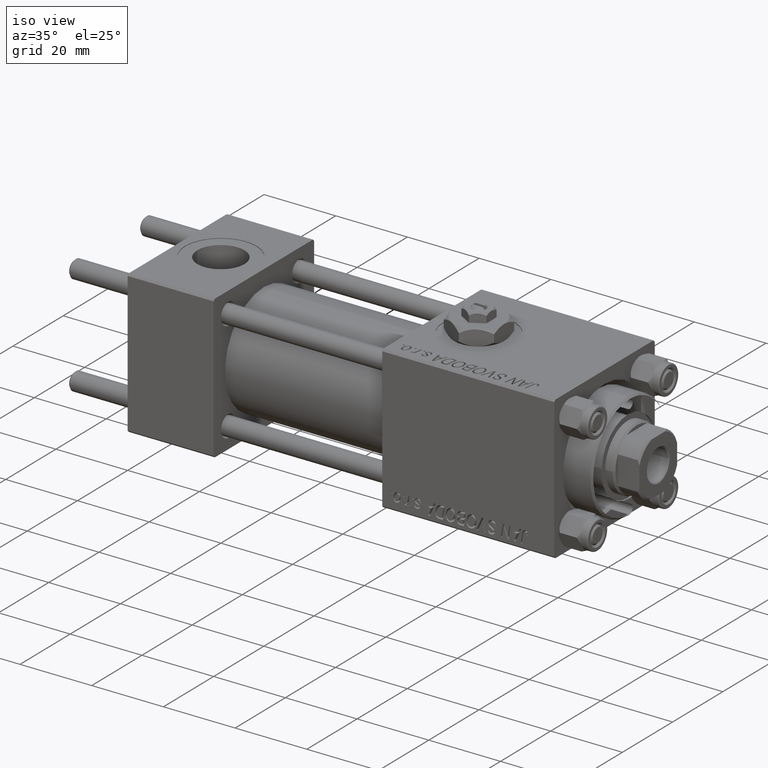
[diagram: clean part render]
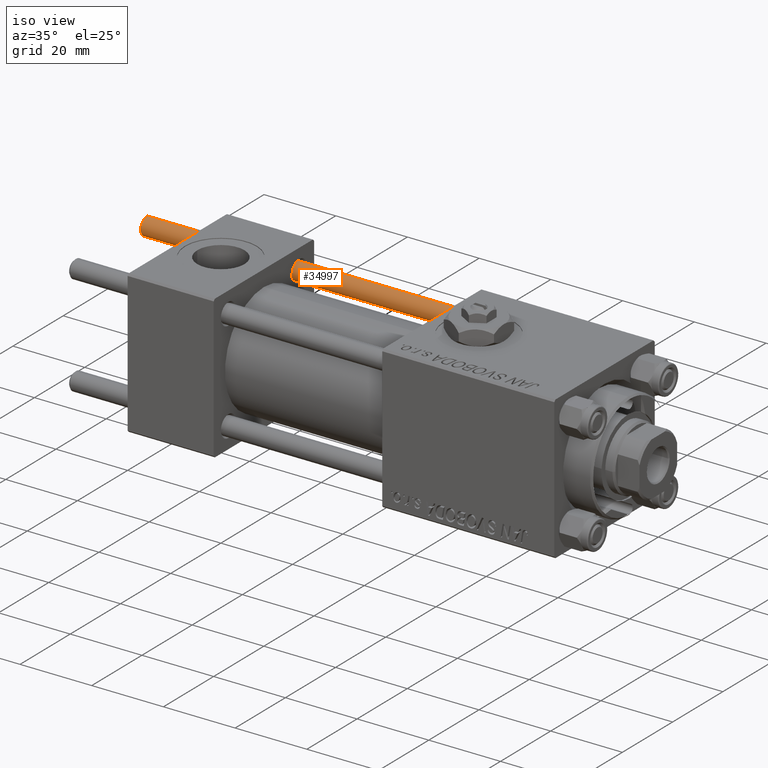
[diagram: same view with one face highlighted and labeled with its STEP entity id]
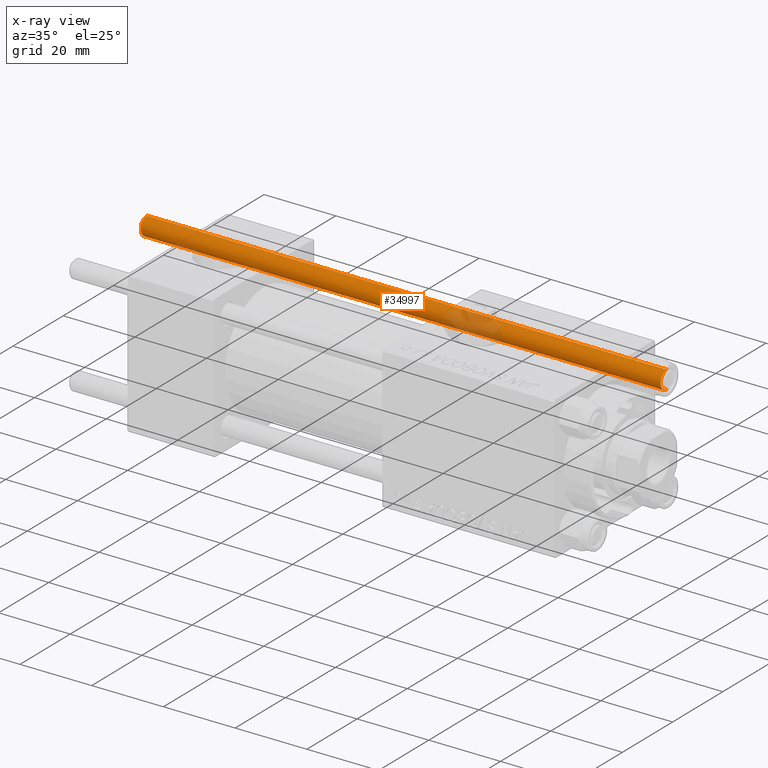
[diagram: x-ray of the same camera — body ghosted, the highlighted face saturated]
A machine part, iso view. The second image highlights one B-rep face of the part: STEP entity #34997.
The next image is the same camera in x-ray: the body ghosted, the highlighted face saturated — about 10% of this face is hidden behind the body in this view.
In plain terms, the highlighted cylindrical surface (edge-blend (fillet) strip) has radius 2.5 mm, axis along (-1, -0, -0).
Its self-contained STEP definition (entity closure, byte-faithful):
#1056 = CARTESIAN_POINT ( 'NONE',  ( 0.000000000000000000, 0.000000000000000000, 0.5000000000000559552 ) ) ;
#2392 = VERTEX_POINT ( 'NONE', #38677 ) ;
#2505 = DIRECTION ( 'NONE',  ( -1.000000000000000000, 0.000000000000000000, 0.000000000000000000 ) ) ;
#5124 = VECTOR ( 'NONE', #46745, 1000.000000000000000 ) ;
#6091 = LINE ( 'NONE', #22118, #35987 ) ;
#7775 = EDGE_LOOP ( 'NONE', ( #17033, #18229, #35977, #50724 ) ) ;
#9344 = CYLINDRICAL_SURFACE ( 'NONE', #32173, 2.500000000000000000 ) ;
#12777 = CARTESIAN_POINT ( 'NONE',  ( -2.500000000000000000, 0.000000000000000000, 0.5000000000000559552 ) ) ;
#15685 = VERTEX_POINT ( 'NONE', #12777 ) ;
#16307 = DIRECTION ( 'NONE',  ( 1.000000000000000000, 0.000000000000000000, 0.000000000000000000 ) ) ;
#17033 = ORIENTED_EDGE ( 'NONE', *, *, #20450, .F. ) ;
#17506 = DIRECTION ( 'NONE',  ( 0.000000000000000000, 0.000000000000000000, -1.000000000000000000 ) ) ;
#18229 = ORIENTED_EDGE ( 'NONE', *, *, #36875, .T. ) ;
#20450 = EDGE_CURVE ( 'NONE', #2392, #22270, #6091, .T. ) ;
#21141 = CIRCLE ( 'NONE', #34556, 2.500000000000000000 ) ;
#22118 = CARTESIAN_POINT ( 'NONE',  ( 2.500000000000000000, 3.061616997868383141E-16, 146.0000000000000000 ) ) ;
#22270 = VERTEX_POINT ( 'NONE', #26286 ) ;
#25051 = VERTEX_POINT ( 'NONE', #25349 ) ;
#25349 = CARTESIAN_POINT ( 'NONE',  ( -2.500000000000000000, 0.000000000000000000, 145.5000000000000284 ) ) ;
#25378 = CARTESIAN_POINT ( 'NONE',  ( 0.000000000000000000, 0.000000000000000000, 146.0000000000000000 ) ) ;
#26286 = CARTESIAN_POINT ( 'NONE',  ( 2.500000000000000000, 3.061616997868383141E-16, 0.5000000000000559552 ) ) ;
#26817 = CARTESIAN_POINT ( 'NONE',  ( -2.500000000000000000, 0.000000000000000000, 146.0000000000000000 ) ) ;
#30076 = EDGE_CURVE ( 'NONE', #25051, #15685, #51189, .T. ) ;
#32173 = AXIS2_PLACEMENT_3D ( 'NONE', #25378, #39502, #2505 ) ;
#32441 = EDGE_CURVE ( 'NONE', #15685, #22270, #21141, .T. ) ;
#33527 = CARTESIAN_POINT ( 'NONE',  ( 0.000000000000000000, 0.000000000000000000, 145.5000000000000284 ) ) ;
#34556 = AXIS2_PLACEMENT_3D ( 'NONE', #1056, #36764, #16307 ) ;
#34997 = ADVANCED_FACE ( 'NONE', ( #45303 ), #9344, .T. ) ;
#35977 = ORIENTED_EDGE ( 'NONE', *, *, #30076, .T. ) ;
#35987 = VECTOR ( 'NONE', #45726, 1000.000000000000000 ) ;
#36424 = CIRCLE ( 'NONE', #44802, 2.500000000000000000 ) ;
#36764 = DIRECTION ( 'NONE',  ( -0.000000000000000000, -0.000000000000000000, 1.000000000000000000 ) ) ;
#36875 = EDGE_CURVE ( 'NONE', #2392, #25051, #36424, .T. ) ;
#38677 = CARTESIAN_POINT ( 'NONE',  ( 2.500000000000000000, 3.061616997868383141E-16, 145.5000000000000284 ) ) ;
#39502 = DIRECTION ( 'NONE',  ( -0.000000000000000000, -0.000000000000000000, -1.000000000000000000 ) ) ;
#41643 = DIRECTION ( 'NONE',  ( 1.000000000000000000, 0.000000000000000000, 0.000000000000000000 ) ) ;
#44802 = AXIS2_PLACEMENT_3D ( 'NONE', #33527, #17506, #41643 ) ;
#45303 = FACE_OUTER_BOUND ( 'NONE', #7775, .T. ) ;
#45726 = DIRECTION ( 'NONE',  ( -0.000000000000000000, -0.000000000000000000, -1.000000000000000000 ) ) ;
#46745 = DIRECTION ( 'NONE',  ( -0.000000000000000000, -0.000000000000000000, -1.000000000000000000 ) ) ;
#50724 = ORIENTED_EDGE ( 'NONE', *, *, #32441, .T. ) ;
#51189 = LINE ( 'NONE', #26817, #5124 ) ;